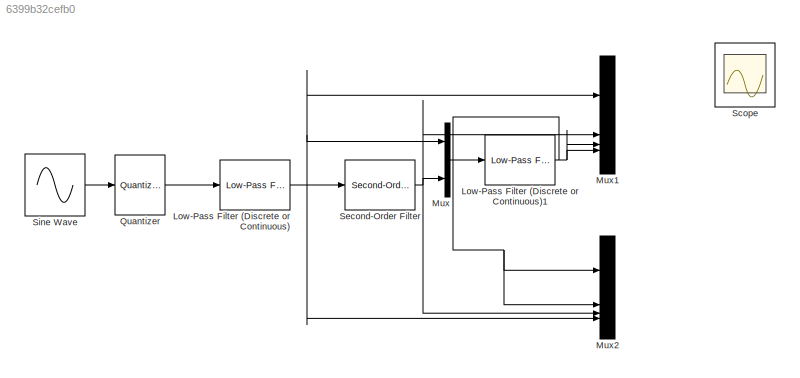
MODEL slx_6399b32cefb0
KIND model
CONFIG AbsTol = auto
CONFIG EnableMultiTasking = off
CONFIG FixedStep = auto
CONFIG MaxStep = auto
CONFIG MinStep = auto
CONFIG RelTol = 1e-3
CONFIG SampleTimeConstraint = Unconstrained
CONFIG SolverName = VariableStepAuto
CONFIG StartTime = 0.0
CONFIG StopTime = 100
BLOCK [Reference] Low-Pass Filter (Discrete or Continuous)  REF=eeGeneralControl/Low-Pass Filter
(Discrete or Continuous)
  LibrarySourceBlock = ee_sl_lib/General Control/Low-Pass Filter\n(Discrete or Continuous)
  SourceBlock = eeGeneralControl/Low-Pass Filter\n(Discrete or Continuous)
  SourceType = Low-Pass Filter (Discrete or Continuous)
BLOCK [Reference] Low-Pass Filter (Discrete or Continuous)1  REF=eeGeneralControl/Low-Pass Filter
(Discrete or Continuous)
  LibrarySourceBlock = ee_sl_lib/General Control/Low-Pass Filter\n(Discrete or Continuous)
  SourceBlock = eeGeneralControl/Low-Pass Filter\n(Discrete or Continuous)
  SourceType = Low-Pass Filter (Discrete or Continuous)
BLOCK [Mux] Mux
  DisplayOption = bar
  Inputs = 3
BLOCK [Mux] Mux1
  DisplayOption = bar
BLOCK [Mux] Mux2
  DisplayOption = bar
BLOCK [Quantizer] Quantizer
BLOCK [Scope] Scope
  Floating = off
  NumInputPorts = 1
  ScopeSpecificationString = Simulink.scopes.TimeScopeBlockCfg('CurrentConfiguration', extmgr.ConfigurationSet(extmgr.Configuration('Core','General UI',true),extmgr.Configuration('Core','Source UI',true),extmgr.Configuration('Sources','WiredSimulink',true),extmgr.Configuration('Visuals','Time Domain',true,'SerializedDisplays',{struct('MinYLimReal','-62084353231716067465096386397762503098941433980841166859825560745492247773841...<+2589ch>
BLOCK [Reference] Second-Order Filter  REF=eeGeneralControl/Second-Order Filter
  LibrarySourceBlock = ee_sl_lib/General Control/Second-Order Filter
  SourceBlock = eeGeneralControl/Second-Order Filter
  SourceType = Second-Order Filter
BLOCK [Sin] Sine Wave
  SampleTime = 0
NET Low-Pass Filter (Discrete or Continuous)1:1 -> Mux1:3, Mux1:4, Mux2:1, Mux2:2
NET Low-Pass Filter (Discrete or Continuous):1 -> Mux1:1, Mux2:4, Mux:1, Second-Order Filter:1
LINE Mux:1 -> Low-Pass Filter (Discrete or Continuous)1:1
LINE Quantizer:1 -> Low-Pass Filter (Discrete or Continuous):1
NET Second-Order Filter:1 -> Mux1:2, Mux2:3, Mux:3
LINE Sine Wave:1 -> Quantizer:1
note: NET lines group one-source signal fan-out (src -> all destinations, sorted); 1:1 wires keep LINE
